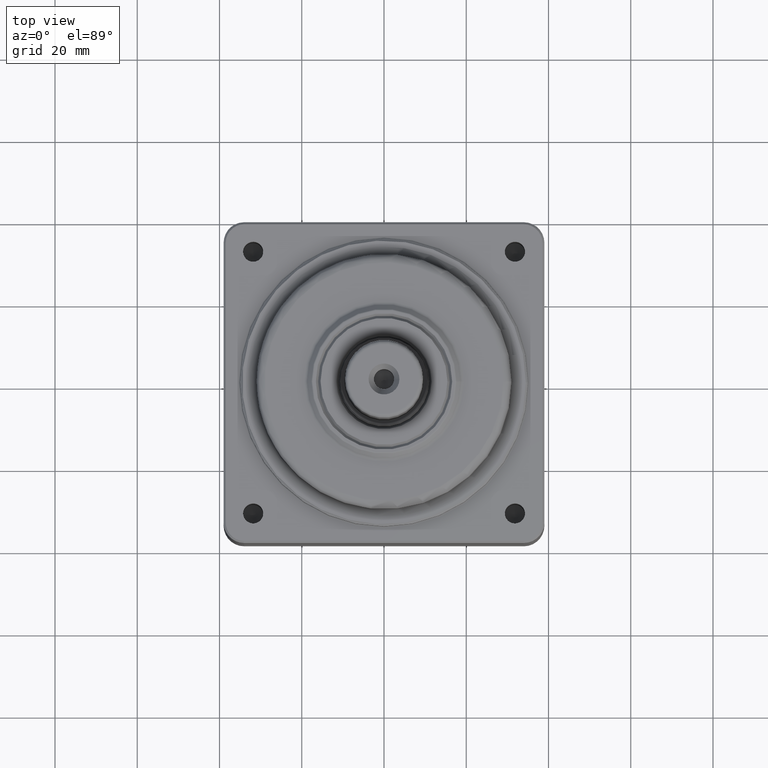
[diagram: clean part render]
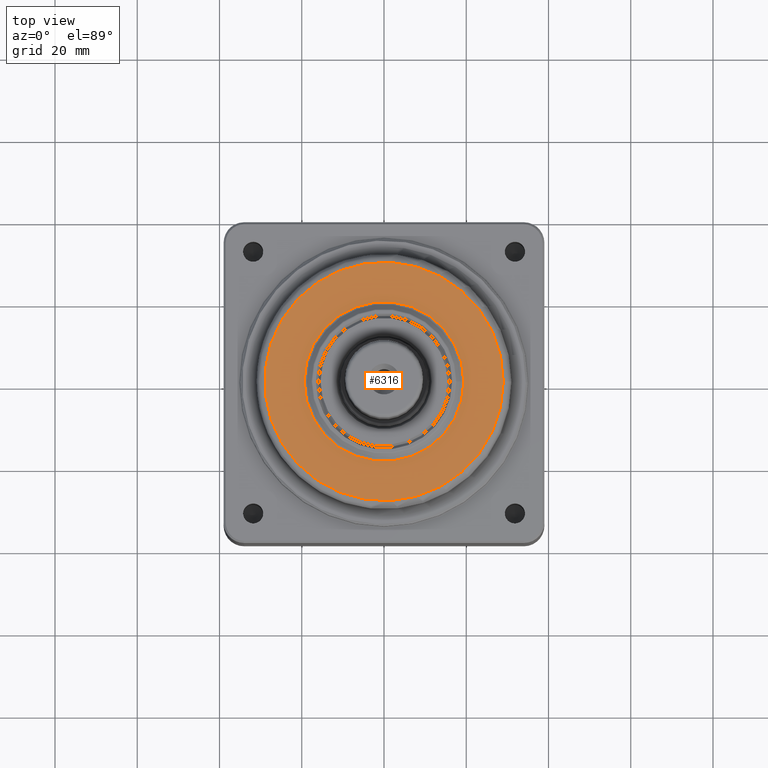
[diagram: same view with one face highlighted and labeled with its STEP entity id]
A machine part, top view. The second image highlights one B-rep face of the part: STEP entity #6316.
In plain terms, the highlighted planar face has unit normal (0, 0, -1).
Its self-contained STEP definition (entity closure, byte-faithful):
#6285=CARTESIAN_POINT('',(19.414213562373103,2.377555E-015,50.0));
#6286=VERTEX_POINT('',#6285);
#6287=CARTESIAN_POINT('',(0.0,0.0,50.0));
#6288=DIRECTION('',(0.0,0.0,1.0));
#6289=DIRECTION('',(-1.0,0.0,0.0));
#6290=AXIS2_PLACEMENT_3D('',#6287,#6288,#6289);
#6291=CIRCLE('',#6290,19.414213562373103);
#6292=EDGE_CURVE('',#6286,#6286,#6291,.T.);
#6297=CARTESIAN_POINT('',(0.0,0.0,50.0));
#6298=DIRECTION('',(0.0,0.0,-1.0));
#6299=DIRECTION('',(-1.0,0.0,0.0));
#6300=AXIS2_PLACEMENT_3D('',#6297,#6298,#6299);
#6301=PLANE('',#6300);
#6302=CARTESIAN_POINT('',(29.0,-3.551476E-015,50.0));
#6303=VERTEX_POINT('',#6302);
#6304=CARTESIAN_POINT('',(0.0,0.0,50.0));
#6305=DIRECTION('',(0.0,0.0,-1.0));
#6306=DIRECTION('',(-1.0,0.0,0.0));
#6307=AXIS2_PLACEMENT_3D('',#6304,#6305,#6306);
#6308=CIRCLE('',#6307,29.0);
#6309=EDGE_CURVE('',#6303,#6303,#6308,.T.);
#6310=ORIENTED_EDGE('',*,*,#6309,.F.);
#6311=EDGE_LOOP('',(#6310));
#6312=FACE_OUTER_BOUND('',#6311,.T.);
#6313=ORIENTED_EDGE('',*,*,#6292,.F.);
#6314=EDGE_LOOP('',(#6313));
#6315=FACE_BOUND('',#6314,.T.);
#6316=ADVANCED_FACE('',(#6312,#6315),#6301,.F.);